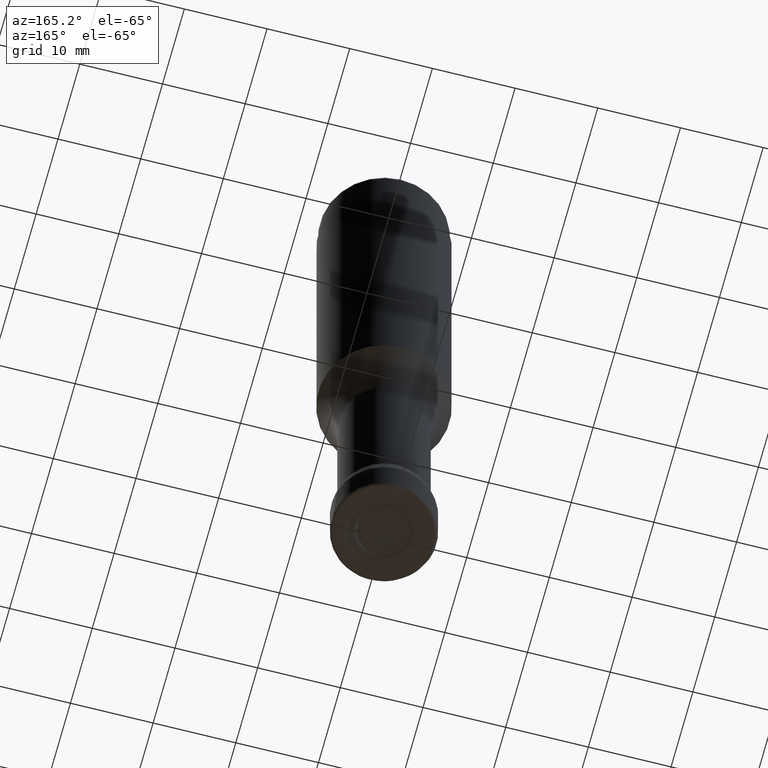
[diagram: clean part render]
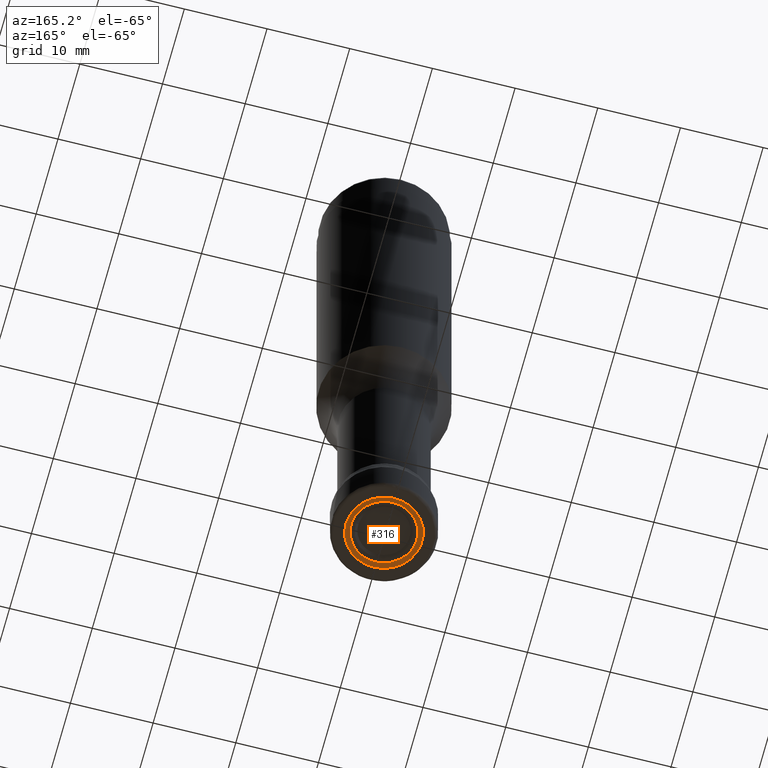
[diagram: same view with one face highlighted and labeled with its STEP entity id]
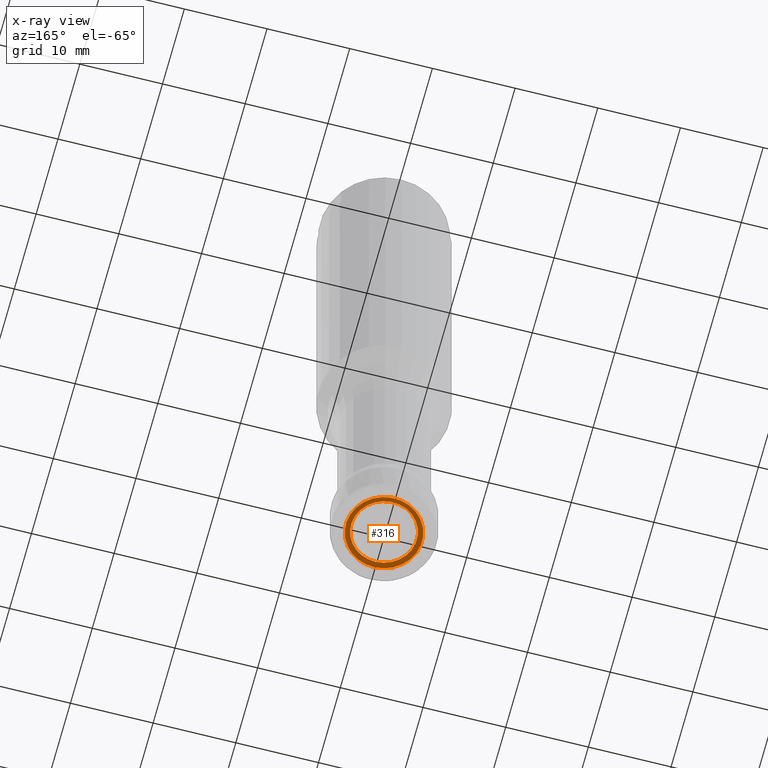
[diagram: x-ray of the same camera — body ghosted, the highlighted face saturated]
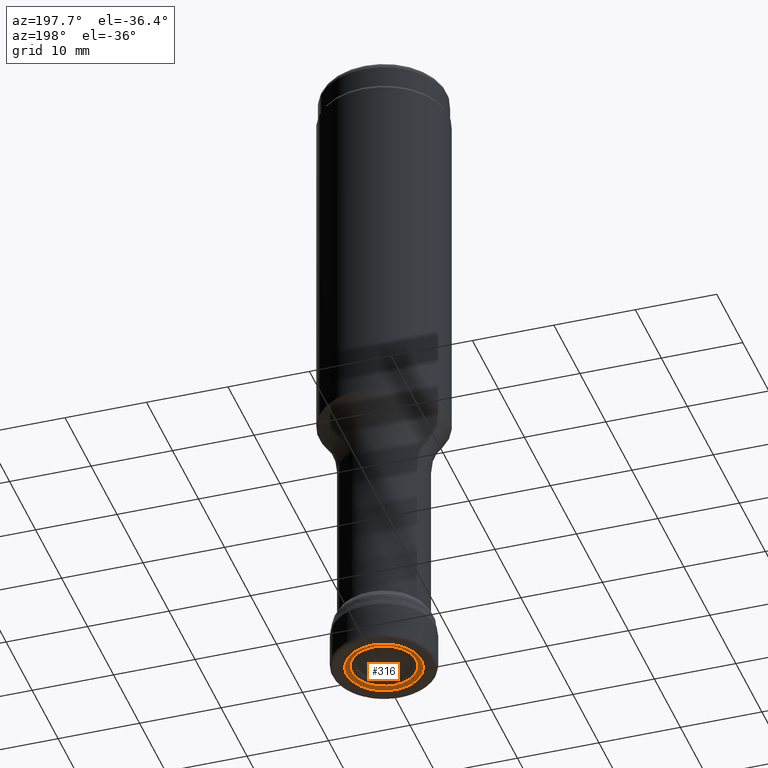
[diagram: same view with one face highlighted and labeled with its STEP entity id]
A machine part, auxiliary view. The second image highlights one B-rep face of the part: STEP entity #316.
The next image is the same camera in x-ray: the body ghosted, the highlighted face saturated — about 0% of this face is hidden behind the body in this view.
A second angle (auxiliary view) of the same face is appended — the face is thin or edge-on in the first view.
In plain terms, the highlighted face is a SurfaceOfRevolution surface.
Its self-contained STEP definition (entity closure, byte-faithful):
#124=SURFACE_OF_REVOLUTION('',#695,#145);
#145=AXIS1_PLACEMENT('',#1439,#918);
#266=FACE_BOUND('',#407,.T.);
#267=FACE_BOUND('',#408,.T.);
#316=ADVANCED_FACE('',(#266,#267),#124,.F.);
#407=EDGE_LOOP('',(#509));
#408=EDGE_LOOP('',(#510));
#509=ORIENTED_EDGE('',*,*,#613,.T.);
#510=ORIENTED_EDGE('',*,*,#614,.F.);
#562=VERTEX_POINT('',#1429);
#563=VERTEX_POINT('',#1433);
#613=EDGE_CURVE('',#562,#562,#652,.T.);
#614=EDGE_CURVE('',#563,#563,#653,.T.);
#652=CIRCLE('',#760,3.97322124640769);
#653=CIRCLE('',#761,4.60206338581334);
#695=B_SPLINE_CURVE_WITH_KNOTS('',3,(#1434,#1435,#1436,#1437,#1438),
 .UNSPECIFIED.,.F.,.F.,(4,1,4),(0.,0.5,1.),.UNSPECIFIED.);
#760=AXIS2_PLACEMENT_3D('',#1428,#912,#913);
#761=AXIS2_PLACEMENT_3D('',#1432,#916,#917);
#912=DIRECTION('',(0.,1.17145536458252E-15,1.));
#913=DIRECTION('',(0.,-1.,1.17337270002339E-15));
#916=DIRECTION('',(0.,1.17145536458252E-15,1.));
#917=DIRECTION('',(0.,-1.,1.17206247631074E-15));
#918=DIRECTION('',(0.,1.17145536458252E-15,1.));
#1428=CARTESIAN_POINT('',(0.,3.52259981680906E-16,0.300702862721912));
#1429=CARTESIAN_POINT('',(0.,-3.97322124640769,0.300702862721917));
#1432=CARTESIAN_POINT('',(0.,1.32800670461784E-16,0.113363833123177));
#1433=CARTESIAN_POINT('',(0.,-4.60206338581334,0.113363833123183));
#1434=CARTESIAN_POINT('',(4.4644263821989,-1.11708750104188,0.11336383312241));
#1435=CARTESIAN_POINT('',(4.3742188245657,-1.07666237849074,0.163917673541045));
#1436=CARTESIAN_POINT('',(4.18257978320378,-0.994892249200408,0.24773187551039));
#1437=CARTESIAN_POINT('',(3.97789213645281,-0.915678494953329,0.290424841510052));
#1438=CARTESIAN_POINT('',(3.8750130672847,-0.877929838471303,0.300702862721913));
#1439=CARTESIAN_POINT('',(0.,0.,0.));